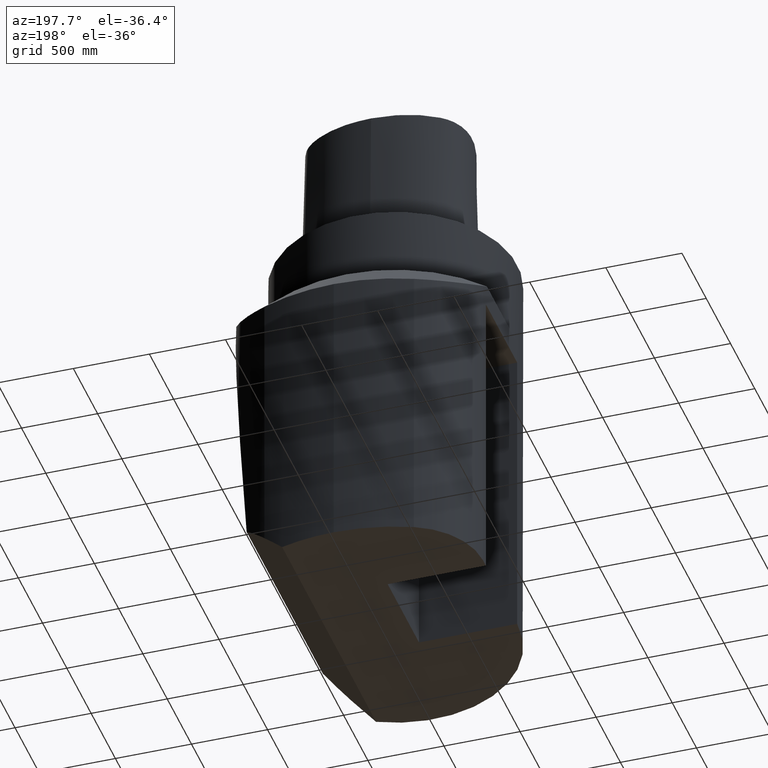
[diagram: clean part render]
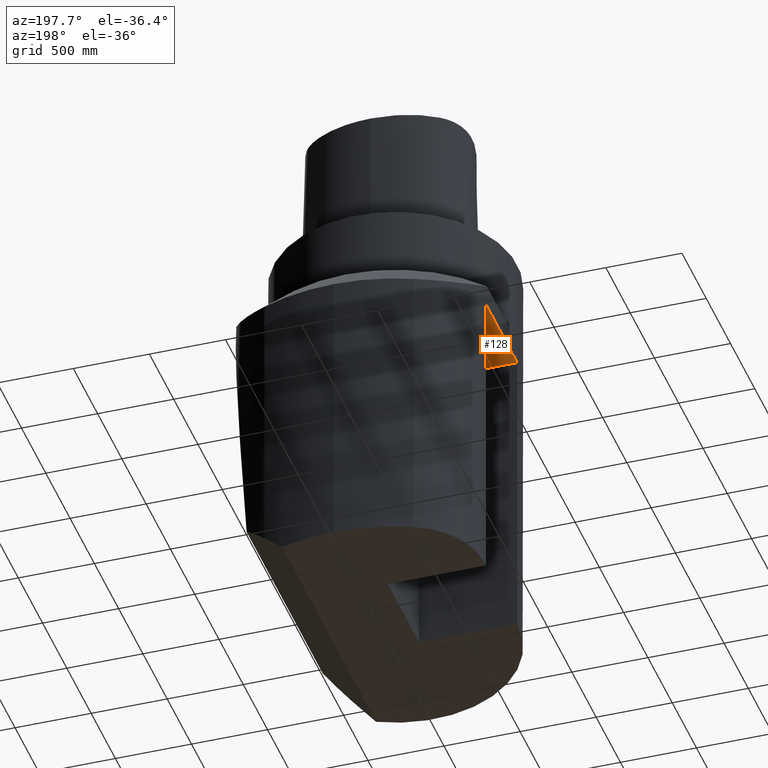
[diagram: same view with one face highlighted and labeled with its STEP entity id]
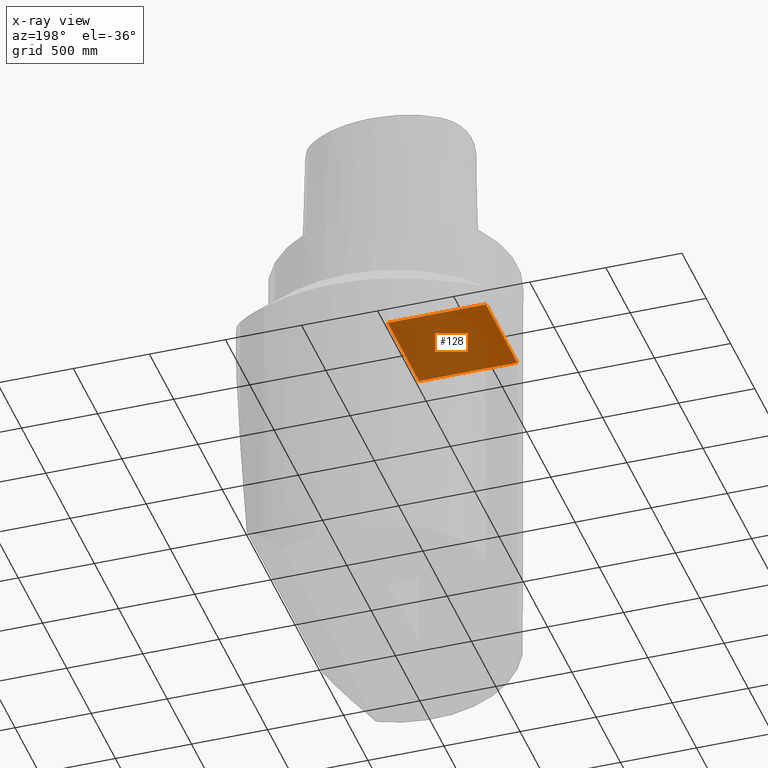
[diagram: x-ray of the same camera — body ghosted, the highlighted face saturated]
A machine part, auxiliary view. The second image highlights one B-rep face of the part: STEP entity #128.
The next image is the same camera in x-ray: the body ghosted, the highlighted face saturated — about 75% of this face is hidden behind the body in this view.
In plain terms, the highlighted planar face has unit normal (0, -0, -1).
Its self-contained STEP definition (entity closure, byte-faithful):
#101=EDGE_CURVE('Unnamed[1]',#280,#281,#282,.T.);
#128=ADVANCED_FACE('Unnamed[1]',(#324),#325,.T.);
#223=EDGE_CURVE('Unnamed[1]',#280,#273,#447,.T.);
#227=EDGE_CURVE('Unnamed[1]',#281,#327,#451,.T.);
#235=EDGE_CURVE('Unnamed[1]',#327,#273,#459,.T.);
#273=VERTEX_POINT('',#492);
#280=VERTEX_POINT('',#503);
#281=VERTEX_POINT('',#504);
#282=LINE('',#505,#506);
#324=FACE_OUTER_BOUND('',#577,.T.);
#325=PLANE('',#578);
#327=VERTEX_POINT('',#581);
#447=LINE('',#976,#977);
#451=LINE('',#984,#985);
#459=LINE('',#1007,#1008);
#492=CARTESIAN_POINT('',(-31.5,-5.28939329335578E-014,-29.9999999999993));
#503=CARTESIAN_POINT('',(-31.5000000000001,25.4,-29.9999999999993));
#504=CARTESIAN_POINT('',(-6.10000000000846,25.3999999999999,-29.9999999999993));
#505=CARTESIAN_POINT('',(-6.10000000000846,25.3999999999999,-29.9999999999993));
#506=VECTOR('',#1062,1.0);
#577=EDGE_LOOP('',(#1106,#1107,#1108,#1109));
#578=AXIS2_PLACEMENT_3D('',#1110,#1111,#1112);
#581=CARTESIAN_POINT('',(-6.10000000000847,-2.91381278079036E-014,-29.9999999999993));
#976=CARTESIAN_POINT('',(-31.5000000000001,19.6275235895432,-29.9999999999993));
#977=VECTOR('',#1256,1.0);
#984=CARTESIAN_POINT('',(-6.10000000000847,-2.91381278079036E-014,-29.9999999999993));
#985=VECTOR('',#1258,1.0);
#1007=CARTESIAN_POINT('',(-31.5,-5.28939329335578E-014,-29.9999999999993));
#1008=VECTOR('',#1263,1.0);
#1062=DIRECTION('',(1.0,-1.83697019872103E-016,1.22464679914735E-016));
#1106=ORIENTED_EDGE('',*,*,#227,.T.);
#1107=ORIENTED_EDGE('',*,*,#235,.T.);
#1108=ORIENTED_EDGE('',*,*,#223,.F.);
#1109=ORIENTED_EDGE('',*,*,#101,.T.);
#1110=CARTESIAN_POINT('',(-18.8000000000043,25.3999999999999,-29.9999999999993));
#1111=DIRECTION('',(1.22464679914735E-016,-6.12323399573677E-017,-1.0));
#1112=DIRECTION('',(-1.0,1.83697019872103E-016,-1.22464679914735E-016));
#1256=DIRECTION('',(3.91902584538168E-015,-1.0,6.12323399573682E-017));
#1258=DIRECTION('',(-2.88599982828811E-016,-1.0,6.12323399573677E-017));
#1263=DIRECTION('',(-1.0,-9.35267918333152E-016,-1.22464679914735E-016));